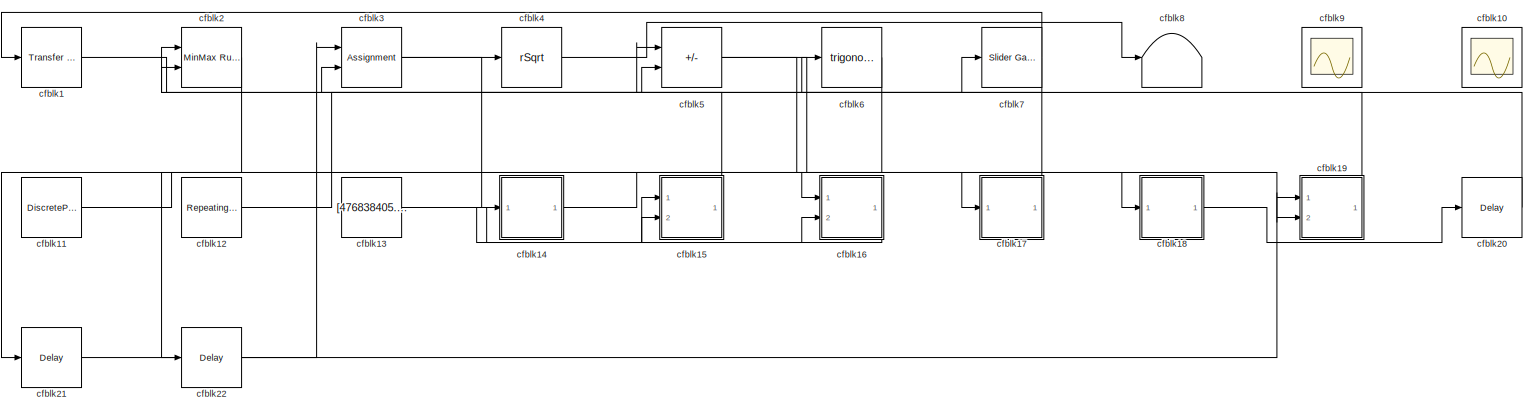
[diagram: root canvas - part 1/1, most of the canvas]
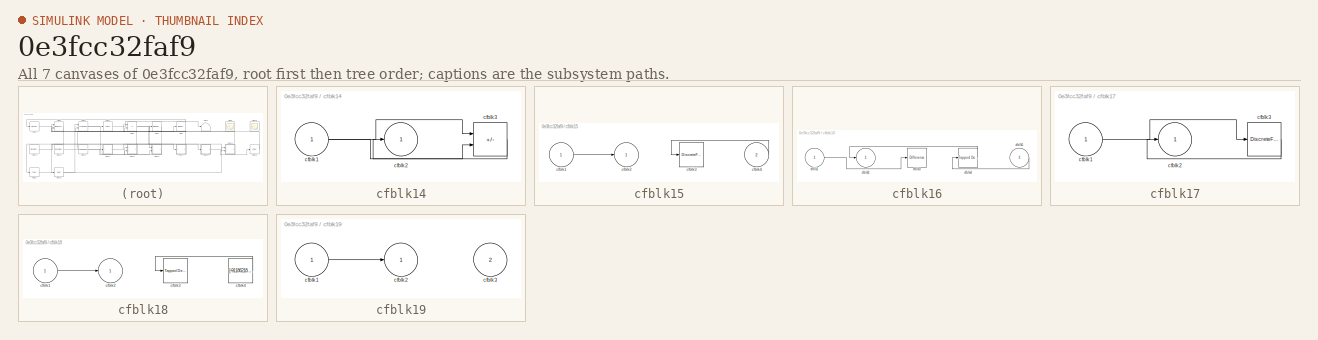
[diagram: thumbnail index - all 7 canvases of the model, root first then tree order]
MODEL slx_0e3fcc32faf9
KIND model
CONFIG AbsTol = auto
CONFIG EnableMultiTasking = off
CONFIG FixedStep = auto
CONFIG MaxStep = auto
CONFIG MinStep = auto
CONFIG RelTol = 1e-3
CONFIG SampleTimeConstraint = Unconstrained
CONFIG SolverName = VariableStepAuto
CONFIG StartTime = 0.0
CONFIG StopTime = 10.0
BLOCK [Reference] cfblk1  REF=simulink/Discrete/Transfer Fcn
First Order
  Ports = [1, 1]
  SourceBlock = simulink/Discrete/Transfer Fcn\nFirst Order
  SourceProductBaseCode = SL
  SourceType = First Order Transfer Fcn
BLOCK [Scope] cfblk10
  Floating = on
  NumInputPorts = 1
  Ports = []
BLOCK [DiscretePulseGenerator] cfblk11
  Amplitude = [-279898301.417747]
  Period = [25568110.472088]
  PhaseDelay = [7.000000]
  Ports = [0, 1]
  PulseType = Time based
  PulseWidth = 5
BLOCK [Reference] cfblk12  REF=simulink/Sources/Repeating
Sequence
  Ports = [0, 1]
  SourceBlock = simulink/Sources/Repeating\nSequence
  SourceProductBaseCode = SL
  SourceType = Repeating table
BLOCK [Constant] cfblk13
  SampleTime = 1
  Value = [476838405.519492]
BLOCK [SubSystem] cfblk14
  Ports = [1, 1]
  RequestExecContextInheritance = off
BLOCK [Inport] cfblk14/cfblk1
BLOCK [Outport] cfblk14/cfblk2
BLOCK [Sum] cfblk14/cfblk3
  IconShape = rectangular
  Inputs = +-
  Ports = [2, 1]
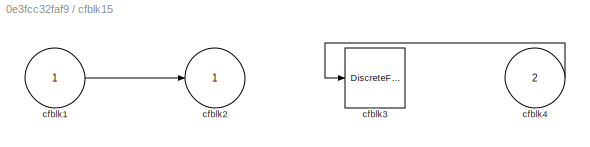
BLOCK [SubSystem] cfblk15
  Ports = [2, 1]
  RequestExecContextInheritance = off
BLOCK [Inport] cfblk15/cfblk1
BLOCK [Outport] cfblk15/cfblk2
BLOCK [DiscreteFir] cfblk15/cfblk3
  InputPortMap = u0
  OutputPortMap = o0
  Ports = [1, 1]
  SampleTime = 1
BLOCK [Inport] cfblk15/cfblk4
  Port = 2
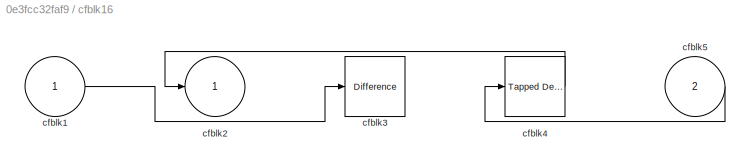
BLOCK [SubSystem] cfblk16
  Ports = [2, 1]
  RequestExecContextInheritance = off
BLOCK [Inport] cfblk16/cfblk1
BLOCK [Outport] cfblk16/cfblk2
BLOCK [Reference] cfblk16/cfblk3  REF=simulink/Discrete/Difference
  Ports = [1, 1]
  SourceBlock = simulink/Discrete/Difference
  SourceProductBaseCode = SL
  SourceType = Difference
BLOCK [Reference] cfblk16/cfblk4  REF=simulink/Discrete/Tapped Delay
  Ports = [1, 1]
  SourceBlock = simulink/Discrete/Tapped Delay
  SourceProductBaseCode = SL
  SourceType = Tapped Delay Line
BLOCK [Inport] cfblk16/cfblk5
  Port = 2
BLOCK [SubSystem] cfblk17
  Ports = [1, 1]
  RequestExecContextInheritance = off
BLOCK [Inport] cfblk17/cfblk1
BLOCK [Outport] cfblk17/cfblk2
BLOCK [DiscreteFir] cfblk17/cfblk3
  InputPortMap = u0
  OutputPortMap = o0
  Ports = [1, 1]
  SampleTime = 1
BLOCK [SubSystem] cfblk18
  Ports = [1, 1]
  RequestExecContextInheritance = off
BLOCK [Inport] cfblk18/cfblk1
BLOCK [Outport] cfblk18/cfblk2
BLOCK [Reference] cfblk18/cfblk3  REF=simulink/Discrete/Tapped Delay
  Ports = [1, 1]
  SourceBlock = simulink/Discrete/Tapped Delay
  SourceProductBaseCode = SL
  SourceType = Tapped Delay Line
BLOCK [Constant] cfblk18/cfblk4
  SampleTime = 1
  Value = [-91186218.806181]
BLOCK [SubSystem] cfblk19
  Ports = [2, 1]
  RequestExecContextInheritance = off
BLOCK [Inport] cfblk19/cfblk1
BLOCK [Outport] cfblk19/cfblk2
BLOCK [Inport] cfblk19/cfblk3
  Port = 2
BLOCK [Reference] cfblk2  REF=simulink/Math
Operations/MinMax
Running
Resettable
  Ports = [2, 1]
  SourceBlock = simulink/Math\nOperations/MinMax\nRunning\nResettable
  SourceProductBaseCode = SL
  SourceType = MinMax Running Resettable
BLOCK [Delay] cfblk20
  InputPortMap = u0
  Ports = [1, 1]
  SampleTime = 1
BLOCK [Delay] cfblk21
  InputPortMap = u0
  Ports = [1, 1]
  SampleTime = 1
BLOCK [Delay] cfblk22
  InputPortMap = u0
  Ports = [1, 1]
  SampleTime = 1
BLOCK [Assignment] cfblk3
  DiagnosticForDimensions = Warning
  IndexOptions = Index vector (dialog)
  Indices = 1
  OutputSizes = 1
  Ports = [2, 1]
BLOCK [Sqrt] cfblk4
  AlgorithmType = Newton-Raphson
  Operator = rSqrt
BLOCK [Sum] cfblk5
  IconShape = rectangular
  Inputs = +-
  Ports = [2, 1]
BLOCK [Trigonometry] cfblk6
  Ports = [1, 1]
BLOCK [Reference] cfblk7  REF=simulink/Math
Operations/Slider
Gain
  Ports = [1, 1]
  SourceBlock = simulink/Math\nOperations/Slider\nGain
  SourceProductBaseCode = SL
  SourceType = Slider Gain
BLOCK [Terminator] cfblk8
BLOCK [Scope] cfblk9
  Floating = on
  NumInputPorts = 1
  Ports = []
LINE cfblk11:1 -> cfblk16:1
LINE cfblk12:1 -> cfblk7:1
NET cfblk13:1 -> cfblk15:1, cfblk16:2
NET cfblk14/cfblk1:1 -> cfblk14/cfblk3:1, cfblk14/cfblk3:2
LINE cfblk14/cfblk3:1 -> cfblk14/cfblk2:1
LINE cfblk14:1 -> cfblk17:1
LINE cfblk15/cfblk1:1 -> cfblk15/cfblk2:1
LINE cfblk15/cfblk4:1 -> cfblk15/cfblk3:1
LINE cfblk15:1 -> cfblk2:2
LINE cfblk16/cfblk1:1 -> cfblk16/cfblk3:1
LINE cfblk16/cfblk4:1 -> cfblk16/cfblk2:1
LINE cfblk16/cfblk5:1 -> cfblk16/cfblk4:1
LINE cfblk16:1 -> cfblk15:2
LINE cfblk17/cfblk1:1 -> cfblk17/cfblk3:1
LINE cfblk17/cfblk3:1 -> cfblk17/cfblk2:1
LINE cfblk17:1 -> cfblk6:1
LINE cfblk18/cfblk1:1 -> cfblk18/cfblk2:1
LINE cfblk18/cfblk4:1 -> cfblk18/cfblk3:1
LINE cfblk18:1 -> cfblk20:1
LINE cfblk19/cfblk1:1 -> cfblk19/cfblk2:1
LINE cfblk19:1 -> cfblk2:1
LINE cfblk1:1 -> cfblk5:2
LINE cfblk20:1 -> cfblk5:1
LINE cfblk21:1 -> cfblk19:1
LINE cfblk22:1 -> cfblk3:1
LINE cfblk2:1 -> cfblk21:1
NET cfblk3:1 -> cfblk14:1, cfblk4:1
LINE cfblk4:1 -> cfblk8:1
NET cfblk5:1 -> cfblk18:1, cfblk19:2
LINE cfblk6:1 -> cfblk22:1
NET cfblk7:1 -> cfblk1:1, cfblk3:2
note: NET lines group one-source signal fan-out (src -> all destinations, sorted); 1:1 wires keep LINE
